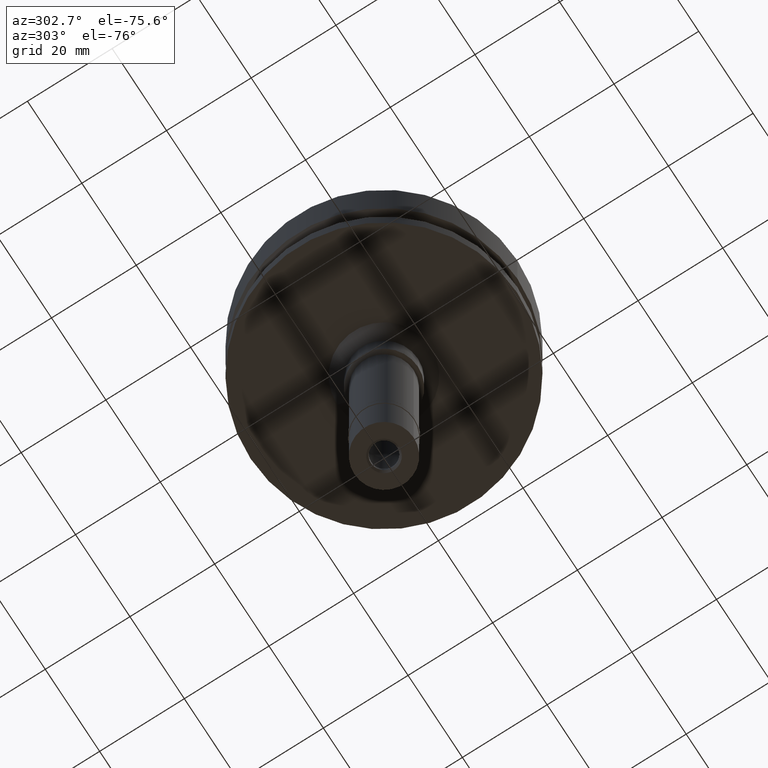
[diagram: clean part render]
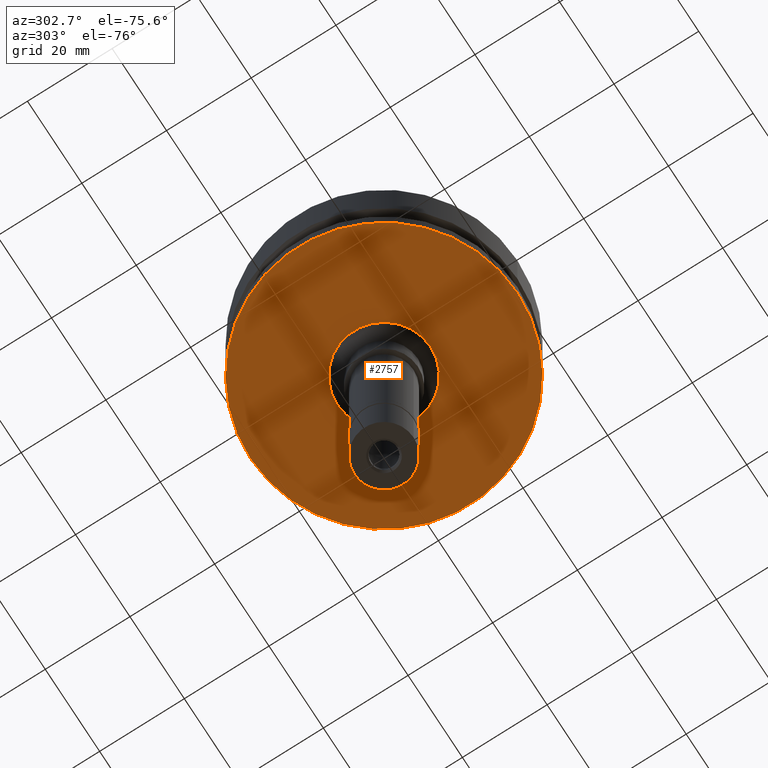
[diagram: same view with one face highlighted and labeled with its STEP entity id]
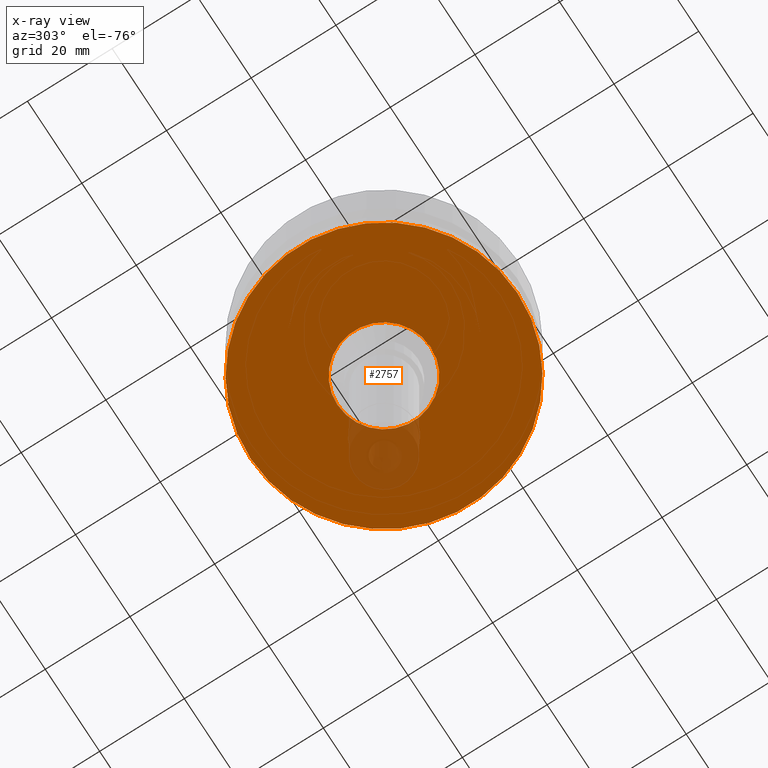
[diagram: x-ray of the same camera — body ghosted, the highlighted face saturated]
A machine part, auxiliary view. The second image highlights one B-rep face of the part: STEP entity #2757.
The next image is the same camera in x-ray: the body ghosted, the highlighted face saturated — about 6% of this face is hidden behind the body in this view.
In plain terms, the highlighted planar face has unit normal (0, 0, 1).
Its self-contained STEP definition (entity closure, byte-faithful):
#27 = DIRECTION ( 'NONE',  ( 0.0000000000000000000, 1.000000000000000000, 0.0000000000000000000 ) ) ;
#40 = CARTESIAN_POINT ( 'NONE',  ( 0.0000000000000000000, 0.0000000000000000000, -26.00000000000000000 ) ) ;
#77 = DIRECTION ( 'NONE',  ( 0.0000000000000000000, 0.0000000000000000000, -1.000000000000000000 ) ) ;
#166 = ORIENTED_EDGE ( 'NONE', *, *, #1148, .F. ) ;
#185 = AXIS2_PLACEMENT_3D ( 'NONE', #2176, #471, #280 ) ;
#209 = CIRCLE ( 'NONE', #2651, 11.00000000000000000 ) ;
#264 = CARTESIAN_POINT ( 'NONE',  ( 0.0000000000000000000, 11.00000000000000000, -26.00000000000000000 ) ) ;
#266 = VERTEX_POINT ( 'NONE', #264 ) ;
#280 = DIRECTION ( 'NONE',  ( 1.000000000000000000, 0.0000000000000000000, 0.0000000000000000000 ) ) ;
#451 = DIRECTION ( 'NONE',  ( 0.0000000000000000000, 0.0000000000000000000, 1.000000000000000000 ) ) ;
#452 = EDGE_LOOP ( 'NONE', ( #1349, #2080 ) ) ;
#471 = DIRECTION ( 'NONE',  ( 0.0000000000000000000, 0.0000000000000000000, 1.000000000000000000 ) ) ;
#513 = DIRECTION ( 'NONE',  ( 0.0000000000000000000, 0.0000000000000000000, 1.000000000000000000 ) ) ;
#714 = PLANE ( 'NONE',  #185 ) ;
#940 = DIRECTION ( 'NONE',  ( 0.0000000000000000000, -1.000000000000000000, 0.0000000000000000000 ) ) ;
#977 = AXIS2_PLACEMENT_3D ( 'NONE', #2391, #513, #2422 ) ;
#1118 = CIRCLE ( 'NONE', #2474, 11.00000000000000000 ) ;
#1148 = EDGE_CURVE ( 'NONE', #1808, #1215, #2739, .T. ) ;
#1215 = VERTEX_POINT ( 'NONE', #1351 ) ;
#1300 = DIRECTION ( 'NONE',  ( 0.0000000000000000000, 0.0000000000000000000, -1.000000000000000000 ) ) ;
#1306 = FACE_OUTER_BOUND ( 'NONE', #2786, .T. ) ;
#1317 = ORIENTED_EDGE ( 'NONE', *, *, #1871, .F. ) ;
#1349 = ORIENTED_EDGE ( 'NONE', *, *, #1801, .F. ) ;
#1351 = CARTESIAN_POINT ( 'NONE',  ( 0.0000000000000000000, 31.50000000000000000, -26.00000000000000000 ) ) ;
#1422 = VERTEX_POINT ( 'NONE', #2040 ) ;
#1434 = CIRCLE ( 'NONE', #1755, 31.50000000000000000 ) ;
#1755 = AXIS2_PLACEMENT_3D ( 'NONE', #2386, #451, #27 ) ;
#1801 = EDGE_CURVE ( 'NONE', #266, #1422, #209, .T. ) ;
#1808 = VERTEX_POINT ( 'NONE', #2600 ) ;
#1816 = EDGE_CURVE ( 'NONE', #1422, #266, #1118, .T. ) ;
#1871 = EDGE_CURVE ( 'NONE', #1215, #1808, #1434, .T. ) ;
#1989 = CARTESIAN_POINT ( 'NONE',  ( 0.0000000000000000000, 0.0000000000000000000, -26.00000000000000000 ) ) ;
#2040 = CARTESIAN_POINT ( 'NONE',  ( 0.0000000000000000000, -11.00000000000000000, -26.00000000000000000 ) ) ;
#2080 = ORIENTED_EDGE ( 'NONE', *, *, #1816, .F. ) ;
#2176 = CARTESIAN_POINT ( 'NONE',  ( 0.0000000000000000000, 0.0000000000000000000, -26.00000000000000000 ) ) ;
#2199 = DIRECTION ( 'NONE',  ( 0.0000000000000000000, 1.000000000000000000, 0.0000000000000000000 ) ) ;
#2386 = CARTESIAN_POINT ( 'NONE',  ( 0.0000000000000000000, 0.0000000000000000000, -26.00000000000000000 ) ) ;
#2391 = CARTESIAN_POINT ( 'NONE',  ( 0.0000000000000000000, 0.0000000000000000000, -26.00000000000000000 ) ) ;
#2422 = DIRECTION ( 'NONE',  ( 0.0000000000000000000, -1.000000000000000000, 0.0000000000000000000 ) ) ;
#2474 = AXIS2_PLACEMENT_3D ( 'NONE', #40, #77, #940 ) ;
#2600 = CARTESIAN_POINT ( 'NONE',  ( 0.0000000000000000000, -31.50000000000000000, -26.00000000000000000 ) ) ;
#2651 = AXIS2_PLACEMENT_3D ( 'NONE', #1989, #1300, #2199 ) ;
#2669 = FACE_BOUND ( 'NONE', #452, .T. ) ;
#2739 = CIRCLE ( 'NONE', #977, 31.50000000000000000 ) ;
#2757 = ADVANCED_FACE ( 'NONE', ( #1306, #2669 ), #714, .F. ) ;
#2786 = EDGE_LOOP ( 'NONE', ( #1317, #166 ) ) ;